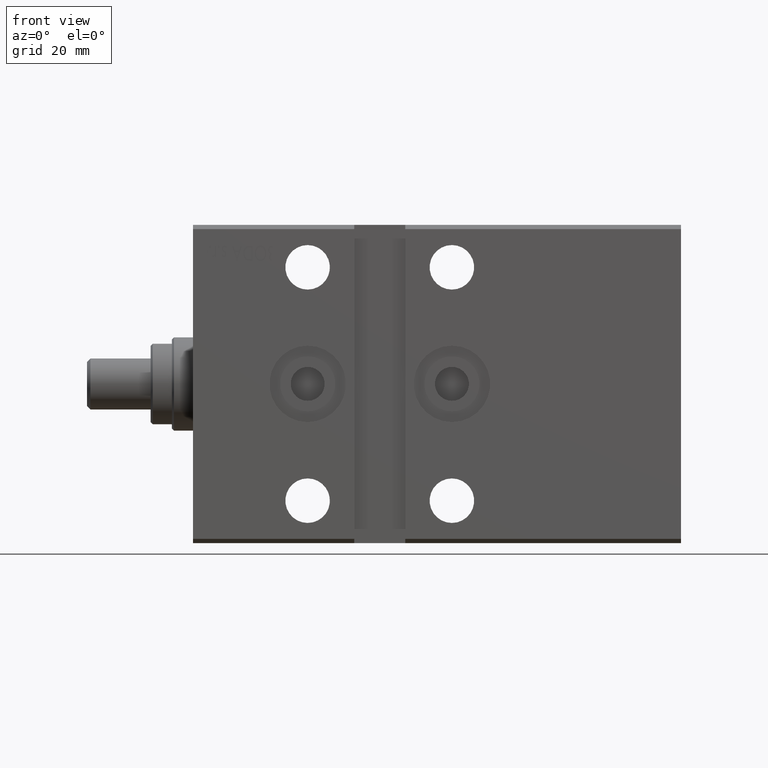
[diagram: clean part render]
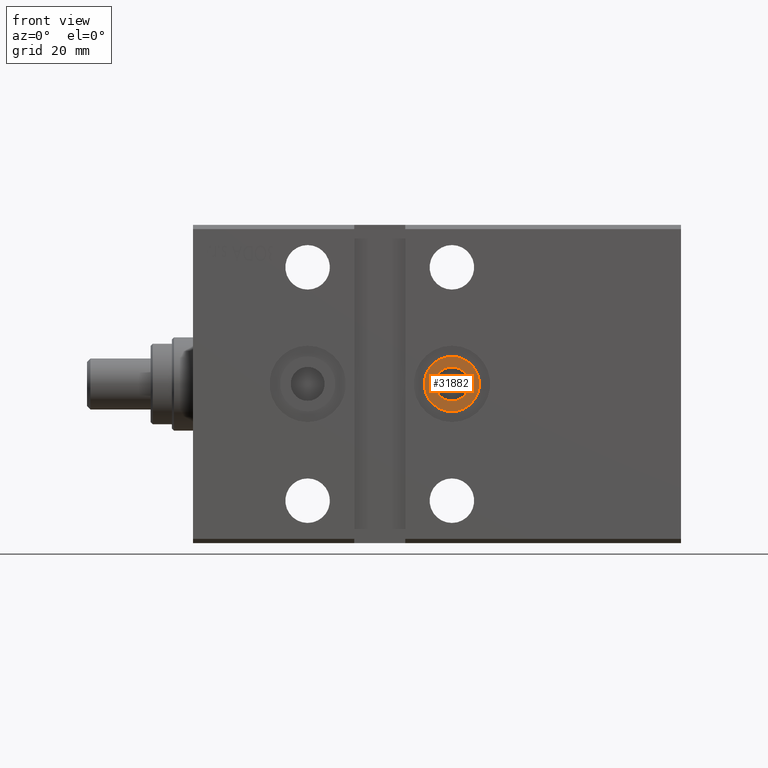
[diagram: same view with one face highlighted and labeled with its STEP entity id]
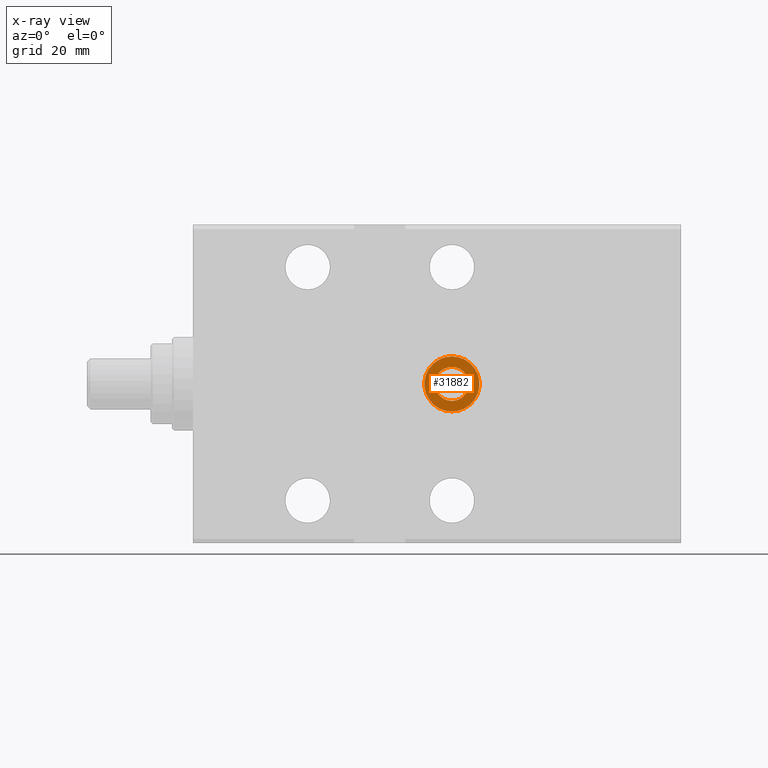
[diagram: x-ray of the same camera — body ghosted, the highlighted face saturated]
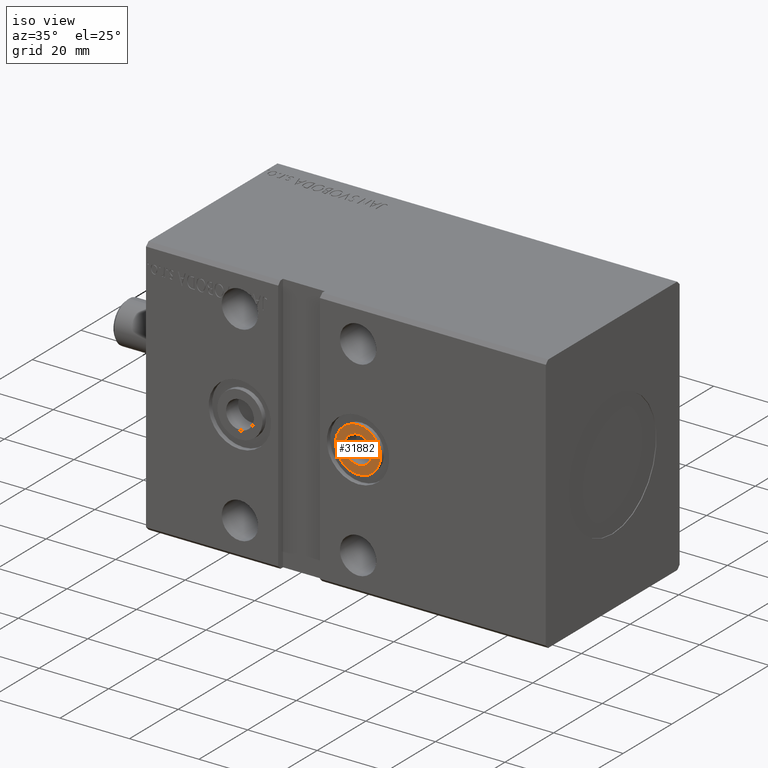
[diagram: same view with one face highlighted and labeled with its STEP entity id]
A machine part, front view. The second image highlights one B-rep face of the part: STEP entity #31882.
The next image is the same camera in x-ray: the body ghosted, the highlighted face saturated — about 0% of this face is hidden behind the body in this view.
A second angle (iso view) of the same face is appended — the face is thin or edge-on in the first view.
In plain terms, the highlighted planar face has unit normal (0, 1, 0).
Its self-contained STEP definition (entity closure, byte-faithful):
#772 = VERTEX_POINT ( 'NONE', #35153 ) ;
#4202 = CARTESIAN_POINT ( 'NONE',  ( 61.00000000000000000, -27.50000000000000355, -4.000000000000010658 ) ) ;
#5295 = DIRECTION ( 'NONE',  ( 0.000000000000000000, 0.000000000000000000, -1.000000000000000000 ) ) ;
#5736 = EDGE_CURVE ( 'NONE', #772, #37475, #22509, .T. ) ;
#7370 = EDGE_LOOP ( 'NONE', ( #11672, #14005 ) ) ;
#8286 = AXIS2_PLACEMENT_3D ( 'NONE', #38658, #35495, #22934 ) ;
#10100 = DIRECTION ( 'NONE',  ( 0.000000000000000000, -1.000000000000000000, -5.507058653894625853E-17 ) ) ;
#11222 = CARTESIAN_POINT ( 'NONE',  ( 61.00000000000000000, -27.50000000000000355, 4.000000000000001776 ) ) ;
#11364 = PLANE ( 'NONE',  #30186 ) ;
#11672 = ORIENTED_EDGE ( 'NONE', *, *, #16955, .F. ) ;
#12566 = FACE_OUTER_BOUND ( 'NONE', #7370, .T. ) ;
#12671 = DIRECTION ( 'NONE',  ( 0.000000000000000000, 0.000000000000000000, -1.000000000000000000 ) ) ;
#13080 = DIRECTION ( 'NONE',  ( -6.162975822039154730E-33, 1.000000000000000000, 8.079268127821993376E-17 ) ) ;
#14005 = ORIENTED_EDGE ( 'NONE', *, *, #5736, .F. ) ;
#15937 = AXIS2_PLACEMENT_3D ( 'NONE', #19031, #10100, #29233 ) ;
#16431 = ORIENTED_EDGE ( 'NONE', *, *, #18738, .F. ) ;
#16955 = EDGE_CURVE ( 'NONE', #37475, #772, #20405, .T. ) ;
#18738 = EDGE_CURVE ( 'NONE', #39334, #30622, #21788, .T. ) ;
#18848 = CARTESIAN_POINT ( 'NONE',  ( 61.00000000000000000, -27.50000000000000355, -4.082078227610672633E-15 ) ) ;
#19031 = CARTESIAN_POINT ( 'NONE',  ( 61.00000000000000000, -27.50000000000000355, -4.082078227610672633E-15 ) ) ;
#20000 = EDGE_LOOP ( 'NONE', ( #16431, #33197 ) ) ;
#20405 = CIRCLE ( 'NONE', #27195, 6.500000000000001776 ) ;
#21788 = CIRCLE ( 'NONE', #41476, 4.000000000000006217 ) ;
#22030 = DIRECTION ( 'NONE',  ( 0.000000000000000000, -1.000000000000000000, -5.507058653894625853E-17 ) ) ;
#22509 = CIRCLE ( 'NONE', #8286, 6.500000000000001776 ) ;
#22630 = CARTESIAN_POINT ( 'NONE',  ( 61.00000000000000000, -27.50000000000000355, -4.082078227610672633E-15 ) ) ;
#22934 = DIRECTION ( 'NONE',  ( 0.000000000000000000, 0.000000000000000000, -1.000000000000000000 ) ) ;
#25096 = DIRECTION ( 'NONE',  ( -0.000000000000000000, 1.000000000000000000, 4.752667057470705491E-17 ) ) ;
#27195 = AXIS2_PLACEMENT_3D ( 'NONE', #22630, #13080, #12671 ) ;
#27517 = FACE_BOUND ( 'NONE', #20000, .T. ) ;
#29233 = DIRECTION ( 'NONE',  ( 0.000000000000000000, 0.000000000000000000, -1.000000000000000000 ) ) ;
#30186 = AXIS2_PLACEMENT_3D ( 'NONE', #41455, #25096, #35089 ) ;
#30622 = VERTEX_POINT ( 'NONE', #11222 ) ;
#31558 = EDGE_CURVE ( 'NONE', #30622, #39334, #32894, .T. ) ;
#31882 = ADVANCED_FACE ( 'NONE', ( #27517, #12566 ), #11364, .F. ) ;
#32894 = CIRCLE ( 'NONE', #15937, 4.000000000000006217 ) ;
#33197 = ORIENTED_EDGE ( 'NONE', *, *, #31558, .F. ) ;
#33756 = CARTESIAN_POINT ( 'NONE',  ( 61.00000000000000000, -27.50000000000000355, -6.500000000000005329 ) ) ;
#35089 = DIRECTION ( 'NONE',  ( 0.000000000000000000, -4.752667057470705491E-17, 1.000000000000000000 ) ) ;
#35153 = CARTESIAN_POINT ( 'NONE',  ( 61.00000000000000000, -27.50000000000000355, 6.499999999999997335 ) ) ;
#35495 = DIRECTION ( 'NONE',  ( -6.162975822039154730E-33, 1.000000000000000000, 8.079268127821993376E-17 ) ) ;
#37475 = VERTEX_POINT ( 'NONE', #33756 ) ;
#38658 = CARTESIAN_POINT ( 'NONE',  ( 61.00000000000000000, -27.50000000000000355, -4.082078227610672633E-15 ) ) ;
#39334 = VERTEX_POINT ( 'NONE', #4202 ) ;
#41455 = CARTESIAN_POINT ( 'NONE',  ( 115.0000000000000000, -27.50000000000000711, 36.50000000000000711 ) ) ;
#41476 = AXIS2_PLACEMENT_3D ( 'NONE', #18848, #22030, #5295 ) ;